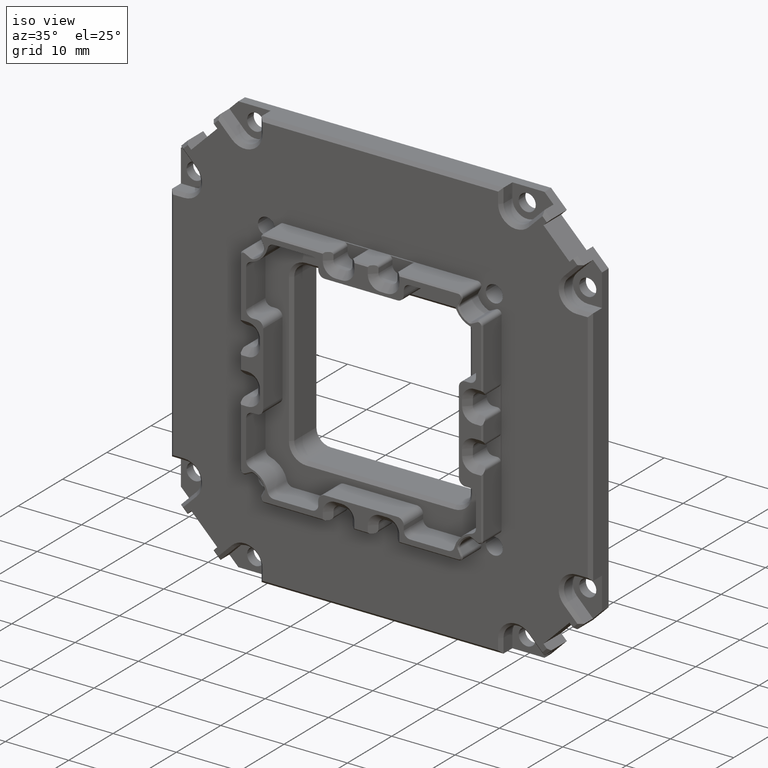
[diagram: clean part render]
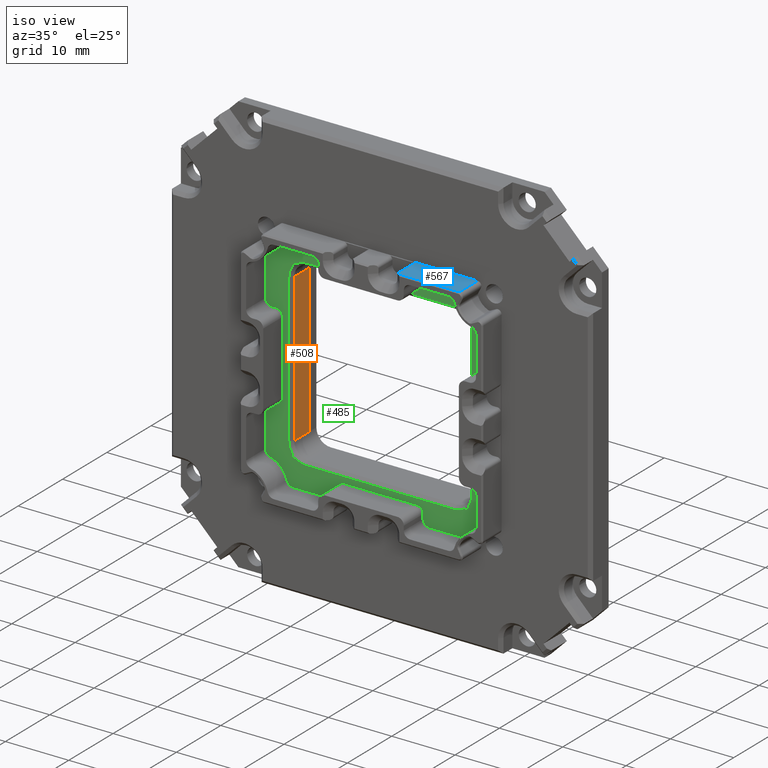
[diagram: same view with three faces highlighted in distinct colors, each labeled with its STEP entity id]
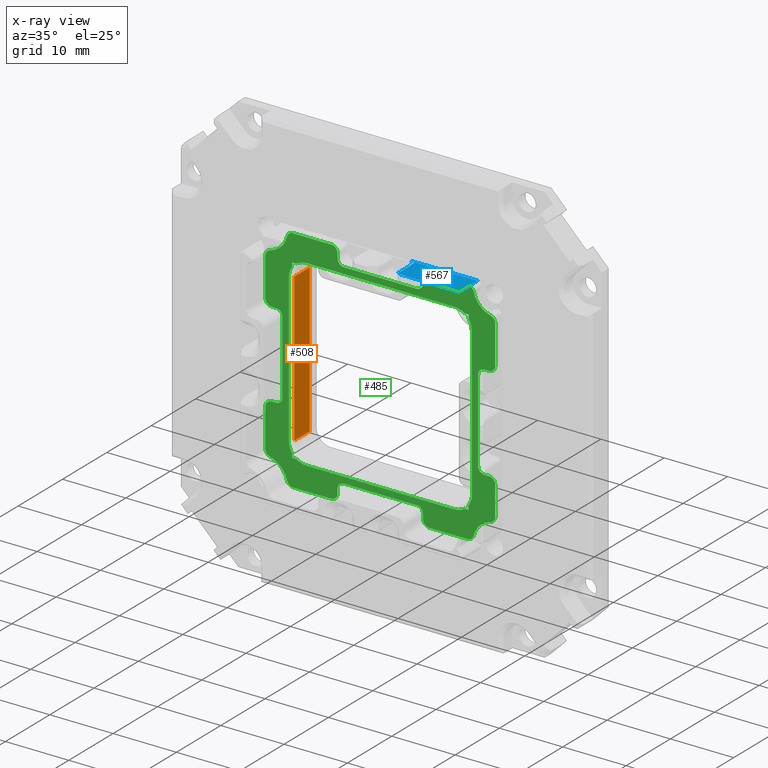
[diagram: x-ray of the same camera — body ghosted, the three highlighted faces saturated]
A machine part, iso view with three faces highlighted in distinct colors.
The next image is the same camera in x-ray (body ghosted, the three faces saturated) — at least one of them is partly hidden behind the body in this view.
Their STEP definitions:

[orange] entity #508 — the highlighted planar face has unit normal (1, 0, 0).
#508=ADVANCED_FACE('',(#961),#4336,.T.);
#961=FACE_OUTER_BOUND('',#1429,.F.);
#1429=EDGE_LOOP('',(#2245,#2246,#2247,#2248));
#2245=ORIENTED_EDGE('',*,*,#6662,.T.);
#2246=ORIENTED_EDGE('',*,*,#6605,.T.);
#2247=ORIENTED_EDGE('',*,*,#6594,.F.);
#2248=ORIENTED_EDGE('',*,*,#6601,.F.);
#4336=PLANE('',#10517);
#6594=EDGE_CURVE('',#9956,#9955,#7780,.T.);
#6601=EDGE_CURVE('',#9949,#9956,#7785,.T.);
#6605=EDGE_CURVE('',#9946,#9955,#7789,.T.);
#6662=EDGE_CURVE('',#9949,#9946,#7822,.T.);
#7780=LINE('',#14354,#8628);
#7785=LINE('',#14361,#8633);
#7789=LINE('',#14365,#8637);
#7822=LINE('',#14422,#8670);
#8628=VECTOR('',#11164,23.4);
#8633=VECTOR('',#11173,3.5);
#8637=VECTOR('',#11177,3.50000000000002);
#8670=VECTOR('',#11258,23.4);
#9946=VERTEX_POINT('',#14006);
#9949=VERTEX_POINT('',#14009);
#9955=VERTEX_POINT('',#14015);
#9956=VERTEX_POINT('',#14016);
#10517=AXIS2_PLACEMENT_3D('',#15684,#12539,#12540);
#11164=DIRECTION('',(0.,0.,-1.));
#11173=DIRECTION('',(0.,-1.,0.));
#11177=DIRECTION('',(0.,-1.,0.));
#11258=DIRECTION('',(0.,0.,-1.));
#12539=DIRECTION('',(1.,0.,0.));
#12540=DIRECTION('',(0.,0.,-1.));
#14006=CARTESIAN_POINT('',(-13.9500019518159,0.,-11.699999947186));
#14009=CARTESIAN_POINT('',(-13.9500029277246,0.,11.700000079221));
#14015=CARTESIAN_POINT('',(-13.9500039036333,-3.50000000000001,-11.699999894372));
#14016=CARTESIAN_POINT('',(-13.9500039036333,-3.5,11.700000105628));
#14354=CARTESIAN_POINT('',(-13.9500039036333,-3.5,11.700000105628));
#14361=CARTESIAN_POINT('',(-13.9500039036333,0.,11.700000105628));
#14365=CARTESIAN_POINT('',(-13.9500039036333,0.,-11.699999894372));
#14422=CARTESIAN_POINT('',(-13.9500039036333,0.,11.700000105628));
#15684=CARTESIAN_POINT('',(-13.9500039036333,-4.,13.950000105628));

[blue] entity #567 — the highlighted planar face has unit normal (0, 0, 1).
#567=ADVANCED_FACE('',(#1020),#4372,.T.);
#1020=FACE_OUTER_BOUND('',#1489,.F.);
#1489=EDGE_LOOP('',(#2654,#2655,#2656,#2657,#2658,#2659,#2660));
#2654=ORIENTED_EDGE('',*,*,#6736,.F.);
#2655=ORIENTED_EDGE('',*,*,#7163,.F.);
#2656=ORIENTED_EDGE('',*,*,#6888,.T.);
#2657=ORIENTED_EDGE('',*,*,#7397,.T.);
#2658=ORIENTED_EDGE('',*,*,#7033,.T.);
#2659=ORIENTED_EDGE('',*,*,#7034,.F.);
#2660=ORIENTED_EDGE('',*,*,#7139,.T.);
#4372=PLANE('',#10576);
#6736=EDGE_CURVE('',#9807,#9824,#7859,.T.);
#6888=EDGE_CURVE('',#9682,#9681,#7946,.T.);
#7033=EDGE_CURVE('',#9510,#9509,#8029,.T.);
#7034=EDGE_CURVE('',#9508,#9509,#8030,.T.);
#7139=EDGE_CURVE('',#9508,#9824,#8135,.T.);
#7163=EDGE_CURVE('',#9682,#9807,#8159,.T.);
#7397=EDGE_CURVE('',#9681,#9510,#8333,.T.);
#7859=LINE('',#14496,#8707);
#7946=LINE('',#14648,#8794);
#8029=LINE('',#14793,#8877);
#8030=LINE('',#14794,#8878);
#8135=LINE('',#14899,#8983);
#8159=LINE('',#14923,#9007);
#8333=LINE('',#15317,#9181);
#8707=VECTOR('',#11369,10.3026741449645);
#8794=VECTOR('',#11586,9.50267414455724);
#8877=VECTOR('',#11793,3.6499999999965);
#8878=VECTOR('',#11794,0.499999999996511);
#8983=VECTOR('',#11899,0.200000000000019);
#9007=VECTOR('',#11923,4.15);
#9181=VECTOR('',#12177,0.42426406871686);
#9508=VERTEX_POINT('',#13568);
#9509=VERTEX_POINT('',#13569);
#9510=VERTEX_POINT('',#13570);
#9681=VERTEX_POINT('',#13741);
#9682=VERTEX_POINT('',#13742);
#9807=VERTEX_POINT('',#13867);
#9824=VERTEX_POINT('',#13884);
#10576=AXIS2_PLACEMENT_3D('',#15743,#12657,#12658);
#11369=DIRECTION('',(-1.,0.,0.));
#11586=DIRECTION('',(-1.,0.,0.));
#11793=DIRECTION('',(0.,1.,0.));
#11794=DIRECTION('',(1.,0.,0.));
#11899=DIRECTION('',(0.,1.,0.));
#11923=DIRECTION('',(0.,1.,0.));
#12177=DIRECTION('',(-0.707106781186545,0.70710678118655,0.));
#12657=DIRECTION('',(0.,0.,1.));
#12658=DIRECTION('',(-1.,0.,0.));
#13568=CARTESIAN_POINT('',(5.04999941206933,-4.20000012339984,19.1499968173791));
#13569=CARTESIAN_POINT('',(5.54999959051208,-4.20000012339993,19.14999308692));
#13570=CARTESIAN_POINT('',(5.5499994887443,-7.85000002161993,19.14999308692));
#13741=CARTESIAN_POINT('',(5.84999959051287,-8.15000012339872,19.1499930869209));
#13742=CARTESIAN_POINT('',(15.352673735069,-8.15000012339982,19.149993086922));
#13867=CARTESIAN_POINT('',(15.352673735069,-4.00000004113327,19.149993086922));
#13884=CARTESIAN_POINT('',(5.04999935245057,-4.00000004113327,19.1499955738918));
#14496=CARTESIAN_POINT('',(15.352673735069,-3.99999999999999,19.149993086922));
#14648=CARTESIAN_POINT('',(15.352673735069,-8.15000012339982,19.149993086922));
#14793=CARTESIAN_POINT('',(5.54999959051159,-7.85000012339633,19.149993086922));
#14794=CARTESIAN_POINT('',(5.04999959051508,-4.20000012339983,19.149993086922));
#14899=CARTESIAN_POINT('',(5.04999959051508,-4.20000012339984,19.149993086922));
#14923=CARTESIAN_POINT('',(15.352673735069,-8.15000012339982,19.149993086922));
#15317=CARTESIAN_POINT('',(5.84999959051508,-8.15000012339982,19.149993086922));
#15743=CARTESIAN_POINT('',(15.4557004765187,-3.89697338195017,19.1499930869221));

[green] entity #485 — the highlighted planar face has unit normal (0, -1, 0).
#448=FACE_BOUND('',#1391,.F.);
#485=ADVANCED_FACE('',(#448,#938),#4325,.T.);
#938=FACE_OUTER_BOUND('',#1392,.F.);
#1391=EDGE_LOOP('',(#1897,#1898,#1899,#1900,#1901,#1902,#1903,#1904,#1905,
#1906,#1907,#1908,#1909,#1910,#1911,#1912,#1913,#1914,#1915,#1916));
#1392=EDGE_LOOP('',(#1917,#1918,#1919,#1920,#1921,#1922,#1923,#1924,#1925,
#1926,#1927,#1928,#1929,#1930,#1931,#1932,#1933,#1934,#1935,#1936,#1937,
#1938,#1939,#1940,#1941,#1942,#1943,#1944,#1945,#1946,#1947,#1948,#1949,
#1950,#1951,#1952,#1953,#1954,#1955,#1956,#1957,#1958,#1959,#1960,#1961,
#1962,#1963,#1964));
#1897=ORIENTED_EDGE('',*,*,#6607,.T.);
#1898=ORIENTED_EDGE('',*,*,#6608,.T.);
#1899=ORIENTED_EDGE('',*,*,#6595,.T.);
#1900=ORIENTED_EDGE('',*,*,#6581,.T.);
#1901=ORIENTED_EDGE('',*,*,#6584,.T.);
#1902=ORIENTED_EDGE('',*,*,#6611,.T.);
#1903=ORIENTED_EDGE('',*,*,#6612,.T.);
#1904=ORIENTED_EDGE('',*,*,#6583,.T.);
#1905=ORIENTED_EDGE('',*,*,#6585,.T.);
#1906=ORIENTED_EDGE('',*,*,#6588,.T.);
#1907=ORIENTED_EDGE('',*,*,#6599,.T.);
#1908=ORIENTED_EDGE('',*,*,#6600,.T.);
#1909=ORIENTED_EDGE('',*,*,#6587,.T.);
#1910=ORIENTED_EDGE('',*,*,#6589,.T.);
#1911=ORIENTED_EDGE('',*,*,#6592,.T.);
#1912=ORIENTED_EDGE('',*,*,#6603,.T.);
#1913=ORIENTED_EDGE('',*,*,#6604,.T.);
#1914=ORIENTED_EDGE('',*,*,#6591,.T.);
#1915=ORIENTED_EDGE('',*,*,#6593,.T.);
#1916=ORIENTED_EDGE('',*,*,#6596,.T.);
#1917=ORIENTED_EDGE('',*,*,#6682,.F.);
#1918=ORIENTED_EDGE('',*,*,#6683,.F.);
#1919=ORIENTED_EDGE('',*,*,#6684,.F.);
#1920=ORIENTED_EDGE('',*,*,#6685,.F.);
#1921=ORIENTED_EDGE('',*,*,#6686,.T.);
#1922=ORIENTED_EDGE('',*,*,#6687,.F.);
#1923=ORIENTED_EDGE('',*,*,#6688,.F.);
#1924=ORIENTED_EDGE('',*,*,#6689,.F.);
#1925=ORIENTED_EDGE('',*,*,#6690,.F.);
#1926=ORIENTED_EDGE('',*,*,#6672,.T.);
#1927=ORIENTED_EDGE('',*,*,#6710,.F.);
#1928=ORIENTED_EDGE('',*,*,#6671,.T.);
#1929=ORIENTED_EDGE('',*,*,#6673,.F.);
#1930=ORIENTED_EDGE('',*,*,#6674,.F.);
#1931=ORIENTED_EDGE('',*,*,#6675,.F.);
#1932=ORIENTED_EDGE('',*,*,#6676,.F.);
#1933=ORIENTED_EDGE('',*,*,#6677,.T.);
#1934=ORIENTED_EDGE('',*,*,#6678,.F.);
#1935=ORIENTED_EDGE('',*,*,#6679,.F.);
#1936=ORIENTED_EDGE('',*,*,#6680,.F.);
#1937=ORIENTED_EDGE('',*,*,#6681,.F.);
#1938=ORIENTED_EDGE('',*,*,#6670,.T.);
#1939=ORIENTED_EDGE('',*,*,#6709,.F.);
#1940=ORIENTED_EDGE('',*,*,#6669,.T.);
#1941=ORIENTED_EDGE('',*,*,#6708,.F.);
#1942=ORIENTED_EDGE('',*,*,#6700,.F.);
#1943=ORIENTED_EDGE('',*,*,#6701,.F.);
#1944=ORIENTED_EDGE('',*,*,#6702,.F.);
#1945=ORIENTED_EDGE('',*,*,#6703,.T.);
#1946=ORIENTED_EDGE('',*,*,#6704,.F.);
#1947=ORIENTED_EDGE('',*,*,#6705,.F.);
#1948=ORIENTED_EDGE('',*,*,#6706,.F.);
#1949=ORIENTED_EDGE('',*,*,#6707,.F.);
#1950=ORIENTED_EDGE('',*,*,#6668,.T.);
#1951=ORIENTED_EDGE('',*,*,#6712,.F.);
#1952=ORIENTED_EDGE('',*,*,#6667,.T.);
#1953=ORIENTED_EDGE('',*,*,#6691,.F.);
#1954=ORIENTED_EDGE('',*,*,#6692,.F.);
#1955=ORIENTED_EDGE('',*,*,#6693,.F.);
#1956=ORIENTED_EDGE('',*,*,#6694,.F.);
#1957=ORIENTED_EDGE('',*,*,#6695,.T.);
#1958=ORIENTED_EDGE('',*,*,#6696,.F.);
#1959=ORIENTED_EDGE('',*,*,#6697,.F.);
#1960=ORIENTED_EDGE('',*,*,#6698,.F.);
#1961=ORIENTED_EDGE('',*,*,#6699,.F.);
#1962=ORIENTED_EDGE('',*,*,#6666,.T.);
#1963=ORIENTED_EDGE('',*,*,#6711,.F.);
#1964=ORIENTED_EDGE('',*,*,#6665,.T.);
#4325=PLANE('',#10494);
#6105=CIRCLE('',#10178,2.74999999999999);
#6106=CIRCLE('',#10179,2.74999999999999);
#6107=CIRCLE('',#10180,2.75);
#6108=CIRCLE('',#10181,2.75);
#6109=CIRCLE('',#10182,2.75);
#6110=CIRCLE('',#10183,2.75);
#6111=CIRCLE('',#10184,2.75);
#6112=CIRCLE('',#10185,2.75);
#6137=CIRCLE('',#10210,1.);
#6138=CIRCLE('',#10211,1.);
#6139=CIRCLE('',#10212,1.);
#6140=CIRCLE('',#10213,1.);
#6141=CIRCLE('',#10214,1.);
#6142=CIRCLE('',#10215,1.);
#6143=CIRCLE('',#10216,1.);
#6144=CIRCLE('',#10217,1.);
#6145=CIRCLE('',#10218,1.);
#6146=CIRCLE('',#10219,1.);
#6147=CIRCLE('',#10220,3.59999999999998);
#6148=CIRCLE('',#10221,0.999999999999976);
#6149=CIRCLE('',#10222,1.);
#6150=CIRCLE('',#10223,1.);
#6151=CIRCLE('',#10224,1.);
#6152=CIRCLE('',#10225,3.59999999999996);
#6153=CIRCLE('',#10226,0.999999999999979);
#6154=CIRCLE('',#10227,1.);
#6155=CIRCLE('',#10228,1.);
#6156=CIRCLE('',#10229,1.);
#6157=CIRCLE('',#10230,3.60000000000001);
#6158=CIRCLE('',#10231,0.999999999999976);
#6159=CIRCLE('',#10232,1.);
#6160=CIRCLE('',#10233,1.);
#6161=CIRCLE('',#10234,1.);
#6162=CIRCLE('',#10235,3.59999999999999);
#6163=CIRCLE('',#10236,0.999999999999979);
#6164=CIRCLE('',#10237,1.);
#6581=EDGE_CURVE('',#9976,#9975,#7773,.T.);
#6583=EDGE_CURVE('',#9972,#9971,#6105,.T.);
#6584=EDGE_CURVE('',#9975,#9970,#6106,.T.);
#6585=EDGE_CURVE('',#9971,#9969,#7775,.T.);
#6587=EDGE_CURVE('',#9966,#9965,#6107,.T.);
#6588=EDGE_CURVE('',#9969,#9964,#6108,.T.);
#6589=EDGE_CURVE('',#9965,#9963,#7777,.T.);
#6591=EDGE_CURVE('',#9960,#9959,#6109,.T.);
#6592=EDGE_CURVE('',#9963,#9958,#6110,.T.);
#6593=EDGE_CURVE('',#9959,#9957,#7779,.T.);
#6595=EDGE_CURVE('',#9954,#9976,#6111,.T.);
#6596=EDGE_CURVE('',#9957,#9953,#6112,.T.);
#6599=EDGE_CURVE('',#9964,#9950,#7783,.T.);
#6600=EDGE_CURVE('',#9950,#9966,#7784,.T.);
#6603=EDGE_CURVE('',#9958,#9947,#7787,.T.);
#6604=EDGE_CURVE('',#9947,#9960,#7788,.T.);
#6607=EDGE_CURVE('',#9953,#9944,#7791,.T.);
#6608=EDGE_CURVE('',#9944,#9954,#7792,.T.);
#6611=EDGE_CURVE('',#9970,#9941,#7795,.T.);
#6612=EDGE_CURVE('',#9941,#9972,#7796,.T.);
#6665=EDGE_CURVE('',#9884,#9883,#6137,.T.);
#6666=EDGE_CURVE('',#9882,#9881,#6138,.T.);
#6667=EDGE_CURVE('',#9880,#9879,#6139,.T.);
#6668=EDGE_CURVE('',#9878,#9877,#6140,.T.);
#6669=EDGE_CURVE('',#9876,#9875,#6141,.T.);
#6670=EDGE_CURVE('',#9874,#9873,#6142,.T.);
#6671=EDGE_CURVE('',#9872,#9871,#6143,.T.);
#6672=EDGE_CURVE('',#9870,#9869,#6144,.T.);
#6673=EDGE_CURVE('',#9868,#9871,#7825,.T.);
#6674=EDGE_CURVE('',#9867,#9868,#6145,.T.);
#6675=EDGE_CURVE('',#9866,#9867,#7826,.T.);
#6676=EDGE_CURVE('',#9865,#9866,#6146,.T.);
#6677=EDGE_CURVE('',#9865,#9864,#6147,.T.);
#6678=EDGE_CURVE('',#9863,#9864,#6148,.T.);
#6679=EDGE_CURVE('',#9862,#9863,#7827,.T.);
#6680=EDGE_CURVE('',#9861,#9862,#6149,.T.);
#6681=EDGE_CURVE('',#9874,#9861,#7828,.T.);
#6682=EDGE_CURVE('',#9860,#9883,#7829,.T.);
#6683=EDGE_CURVE('',#9859,#9860,#6150,.T.);
#6684=EDGE_CURVE('',#9858,#9859,#7830,.T.);
#6685=EDGE_CURVE('',#9857,#9858,#6151,.T.);
#6686=EDGE_CURVE('',#9857,#9856,#6152,.T.);
#6687=EDGE_CURVE('',#9855,#9856,#6153,.T.);
#6688=EDGE_CURVE('',#9854,#9855,#7831,.T.);
#6689=EDGE_CURVE('',#9853,#9854,#6154,.T.);
#6690=EDGE_CURVE('',#9870,#9853,#7832,.T.);
#6691=EDGE_CURVE('',#9852,#9879,#7833,.T.);
#6692=EDGE_CURVE('',#9851,#9852,#6155,.T.);
#6693=EDGE_CURVE('',#9850,#9851,#7834,.T.);
#6694=EDGE_CURVE('',#9849,#9850,#6156,.T.);
#6695=EDGE_CURVE('',#9849,#9848,#6157,.T.);
#6696=EDGE_CURVE('',#9847,#9848,#6158,.T.);
#6697=EDGE_CURVE('',#9846,#9847,#7835,.T.);
#6698=EDGE_CURVE('',#9845,#9846,#6159,.T.);
#6699=EDGE_CURVE('',#9882,#9845,#7836,.T.);
#6700=EDGE_CURVE('',#9844,#9843,#6160,.T.);
#6701=EDGE_CURVE('',#9842,#9844,#7837,.T.);
#6702=EDGE_CURVE('',#9841,#9842,#6161,.T.);
#6703=EDGE_CURVE('',#9841,#9840,#6162,.T.);
#6704=EDGE_CURVE('',#9839,#9840,#6163,.T.);
#6705=EDGE_CURVE('',#9838,#9839,#7838,.T.);
#6706=EDGE_CURVE('',#9837,#9838,#6164,.T.);
#6707=EDGE_CURVE('',#9878,#9837,#7839,.T.);
#6708=EDGE_CURVE('',#9843,#9875,#7840,.T.);
#6709=EDGE_CURVE('',#9876,#9873,#7841,.T.);
#6710=EDGE_CURVE('',#9872,#9869,#7842,.T.);
#6711=EDGE_CURVE('',#9884,#9881,#7843,.T.);
#6712=EDGE_CURVE('',#9880,#9877,#7844,.T.);
#7773=LINE('',#14341,#8621);
#7775=LINE('',#14345,#8623);
#7777=LINE('',#14349,#8625);
#7779=LINE('',#14353,#8627);
#7783=LINE('',#14359,#8631);
#7784=LINE('',#14360,#8632);
#7787=LINE('',#14363,#8635);
#7788=LINE('',#14364,#8636);
#7791=LINE('',#14367,#8639);
#7792=LINE('',#14368,#8640);
#7795=LINE('',#14371,#8643);
#7796=LINE('',#14372,#8644);
#7825=LINE('',#14433,#8673);
#7826=LINE('',#14435,#8674);
#7827=LINE('',#14439,#8675);
#7828=LINE('',#14441,#8676);
#7829=LINE('',#14442,#8677);
#7830=LINE('',#14444,#8678);
#7831=LINE('',#14448,#8679);
#7832=LINE('',#14450,#8680);
#7833=LINE('',#14451,#8681);
#7834=LINE('',#14453,#8682);
#7835=LINE('',#14457,#8683);
#7836=LINE('',#14459,#8684);
#7837=LINE('',#14461,#8685);
#7838=LINE('',#14465,#8686);
#7839=LINE('',#14467,#8687);
#7840=LINE('',#14468,#8688);
#7841=LINE('',#14469,#8689);
#7842=LINE('',#14470,#8690);
#7843=LINE('',#14471,#8691);
#7844=LINE('',#14472,#8692);
#8621=VECTOR('',#11145,23.3999999999974);
#8623=VECTOR('',#11151,23.4);
#8625=VECTOR('',#11157,23.3999999999974);
#8627=VECTOR('',#11163,23.4);
#8631=VECTOR('',#11171,0.668861169915807);
#8632=VECTOR('',#11172,0.668861169915814);
#8635=VECTOR('',#11175,0.6688611699158);
#8636=VECTOR('',#11176,0.668861169915786);
#8639=VECTOR('',#11179,0.668861169915829);
#8640=VECTOR('',#11180,0.668861169915814);
#8643=VECTOR('',#11183,0.668861169915836);
#8644=VECTOR('',#11184,0.668861169915829);
#8673=VECTOR('',#11277,0.699996302311504);
#8674=VECTOR('',#11280,6.03345796620374);
#8675=VECTOR('',#11287,6.03345044536141);
#8676=VECTOR('',#11290,0.700000140915748);
#8677=VECTOR('',#11291,0.700000140915563);
#8678=VECTOR('',#11294,6.03345044534299);
#8679=VECTOR('',#11301,6.03345796620374);
#8680=VECTOR('',#11304,0.699996302263187);
#8681=VECTOR('',#11305,0.699996302311618);
#8682=VECTOR('',#11308,6.03345796620373);
#8683=VECTOR('',#11315,6.03345044536141);
#8684=VECTOR('',#11318,0.700000140915549);
#8685=VECTOR('',#11321,4.53345783831355);
#8686=VECTOR('',#11328,6.03345796620374);
#8687=VECTOR('',#11331,0.699996302263258);
#8688=VECTOR('',#11332,0.700000140903093);
#8689=VECTOR('',#11333,12.9999997471424);
#8690=VECTOR('',#11334,11.4999997757606);
#8691=VECTOR('',#11335,11.5000071401057);
#8692=VECTOR('',#11336,11.4999997757597);
#9837=VERTEX_POINT('',#13897);
#9838=VERTEX_POINT('',#13898);
#9839=VERTEX_POINT('',#13899);
#9840=VERTEX_POINT('',#13900);
#9841=VERTEX_POINT('',#13901);
#9842=VERTEX_POINT('',#13902);
#9843=VERTEX_POINT('',#13903);
#9844=VERTEX_POINT('',#13904);
#9845=VERTEX_POINT('',#13905);
#9846=VERTEX_POINT('',#13906);
#9847=VERTEX_POINT('',#13907);
#9848=VERTEX_POINT('',#13908);
#9849=VERTEX_POINT('',#13909);
#9850=VERTEX_POINT('',#13910);
#9851=VERTEX_POINT('',#13911);
#9852=VERTEX_POINT('',#13912);
#9853=VERTEX_POINT('',#13913);
#9854=VERTEX_POINT('',#13914);
#9855=VERTEX_POINT('',#13915);
#9856=VERTEX_POINT('',#13916);
#9857=VERTEX_POINT('',#13917);
#9858=VERTEX_POINT('',#13918);
#9859=VERTEX_POINT('',#13919);
#9860=VERTEX_POINT('',#13920);
#9861=VERTEX_POINT('',#13921);
#9862=VERTEX_POINT('',#13922);
#9863=VERTEX_POINT('',#13923);
#9864=VERTEX_POINT('',#13924);
#9865=VERTEX_POINT('',#13925);
#9866=VERTEX_POINT('',#13926);
#9867=VERTEX_POINT('',#13927);
#9868=VERTEX_POINT('',#13928);
#9869=VERTEX_POINT('',#13929);
#9870=VERTEX_POINT('',#13930);
#9871=VERTEX_POINT('',#13931);
#9872=VERTEX_POINT('',#13932);
#9873=VERTEX_POINT('',#13933);
#9874=VERTEX_POINT('',#13934);
#9875=VERTEX_POINT('',#13935);
#9876=VERTEX_POINT('',#13936);
#9877=VERTEX_POINT('',#13937);
#9878=VERTEX_POINT('',#13938);
#9879=VERTEX_POINT('',#13939);
#9880=VERTEX_POINT('',#13940);
#9881=VERTEX_POINT('',#13941);
#9882=VERTEX_POINT('',#13942);
#9883=VERTEX_POINT('',#13943);
#9884=VERTEX_POINT('',#13944);
#9941=VERTEX_POINT('',#14001);
#9944=VERTEX_POINT('',#14004);
#9947=VERTEX_POINT('',#14007);
#9950=VERTEX_POINT('',#14010);
#9953=VERTEX_POINT('',#14013);
#9954=VERTEX_POINT('',#14014);
#9957=VERTEX_POINT('',#14017);
#9958=VERTEX_POINT('',#14018);
#9959=VERTEX_POINT('',#14019);
#9960=VERTEX_POINT('',#14020);
#9963=VERTEX_POINT('',#14023);
#9964=VERTEX_POINT('',#14024);
#9965=VERTEX_POINT('',#14025);
#9966=VERTEX_POINT('',#14026);
#9969=VERTEX_POINT('',#14029);
#9970=VERTEX_POINT('',#14030);
#9971=VERTEX_POINT('',#14031);
#9972=VERTEX_POINT('',#14032);
#9975=VERTEX_POINT('',#14035);
#9976=VERTEX_POINT('',#14036);
#10178=AXIS2_PLACEMENT_3D('',#14343,#11147,#11148);
#10179=AXIS2_PLACEMENT_3D('',#14344,#11149,#11150);
#10180=AXIS2_PLACEMENT_3D('',#14347,#11153,#11154);
#10181=AXIS2_PLACEMENT_3D('',#14348,#11155,#11156);
#10182=AXIS2_PLACEMENT_3D('',#14351,#11159,#11160);
#10183=AXIS2_PLACEMENT_3D('',#14352,#11161,#11162);
#10184=AXIS2_PLACEMENT_3D('',#14355,#11165,#11166);
#10185=AXIS2_PLACEMENT_3D('',#14356,#11167,#11168);
#10210=AXIS2_PLACEMENT_3D('',#14425,#11261,#11262);
#10211=AXIS2_PLACEMENT_3D('',#14426,#11263,#11264);
#10212=AXIS2_PLACEMENT_3D('',#14427,#11265,#11266);
#10213=AXIS2_PLACEMENT_3D('',#14428,#11267,#11268);
#10214=AXIS2_PLACEMENT_3D('',#14429,#11269,#11270);
#10215=AXIS2_PLACEMENT_3D('',#14430,#11271,#11272);
#10216=AXIS2_PLACEMENT_3D('',#14431,#11273,#11274);
#10217=AXIS2_PLACEMENT_3D('',#14432,#11275,#11276);
#10218=AXIS2_PLACEMENT_3D('',#14434,#11278,#11279);
#10219=AXIS2_PLACEMENT_3D('',#14436,#11281,#11282);
#10220=AXIS2_PLACEMENT_3D('',#14437,#11283,#11284);
#10221=AXIS2_PLACEMENT_3D('',#14438,#11285,#11286);
#10222=AXIS2_PLACEMENT_3D('',#14440,#11288,#11289);
#10223=AXIS2_PLACEMENT_3D('',#14443,#11292,#11293);
#10224=AXIS2_PLACEMENT_3D('',#14445,#11295,#11296);
#10225=AXIS2_PLACEMENT_3D('',#14446,#11297,#11298);
#10226=AXIS2_PLACEMENT_3D('',#14447,#11299,#11300);
#10227=AXIS2_PLACEMENT_3D('',#14449,#11302,#11303);
#10228=AXIS2_PLACEMENT_3D('',#14452,#11306,#11307);
#10229=AXIS2_PLACEMENT_3D('',#14454,#11309,#11310);
#10230=AXIS2_PLACEMENT_3D('',#14455,#11311,#11312);
#10231=AXIS2_PLACEMENT_3D('',#14456,#11313,#11314);
#10232=AXIS2_PLACEMENT_3D('',#14458,#11316,#11317);
#10233=AXIS2_PLACEMENT_3D('',#14460,#11319,#11320);
#10234=AXIS2_PLACEMENT_3D('',#14462,#11322,#11323);
#10235=AXIS2_PLACEMENT_3D('',#14463,#11324,#11325);
#10236=AXIS2_PLACEMENT_3D('',#14464,#11326,#11327);
#10237=AXIS2_PLACEMENT_3D('',#14466,#11329,#11330);
#10494=AXIS2_PLACEMENT_3D('',#15661,#12493,#12494);
#11145=DIRECTION('',(1.,0.,0.));
#11147=DIRECTION('',(0.,-1.,0.));
#11148=DIRECTION('',(0.818409513088995,0.,-0.574635422581512));
#11149=DIRECTION('',(0.,-1.,0.));
#11150=DIRECTION('',(0.,0.,-1.));
#11151=DIRECTION('',(0.,0.,1.));
#11153=DIRECTION('',(0.,-1.,0.));
#11154=DIRECTION('',(0.574635422581523,0.,0.818409513088988));
#11155=DIRECTION('',(0.,-1.,0.));
#11156=DIRECTION('',(1.,0.,0.));
#11157=DIRECTION('',(-1.,0.,0.));
#11159=DIRECTION('',(0.,-1.,0.));
#11160=DIRECTION('',(-0.818409513088995,0.,0.574635422581513));
#11161=DIRECTION('',(0.,-1.,0.));
#11162=DIRECTION('',(0.,0.,1.));
#11163=DIRECTION('',(0.,0.,-1.));
#11165=DIRECTION('',(0.,-1.,0.));
#11166=DIRECTION('',(-0.574635422581518,0.,-0.818409513088992));
#11167=DIRECTION('',(0.,-1.,0.));
#11168=DIRECTION('',(-1.,0.,0.));
#11171=DIRECTION('',(0.,0.,1.));
#11172=DIRECTION('',(-1.,0.,0.));
#11175=DIRECTION('',(-1.,0.,0.));
#11176=DIRECTION('',(0.,0.,-1.));
#11179=DIRECTION('',(0.,0.,-1.));
#11180=DIRECTION('',(1.,0.,0.));
#11183=DIRECTION('',(1.,0.,0.));
#11184=DIRECTION('',(0.,0.,1.));
#11261=DIRECTION('',(0.,-1.,0.));
#11262=DIRECTION('',(1.,0.,0.));
#11263=DIRECTION('',(0.,-1.,0.));
#11264=DIRECTION('',(0.,0.,-1.));
#11265=DIRECTION('',(0.,-1.,0.));
#11266=DIRECTION('',(0.,0.,1.));
#11267=DIRECTION('',(0.,-1.,0.));
#11268=DIRECTION('',(1.,0.,0.));
#11269=DIRECTION('',(0.,-1.,0.));
#11270=DIRECTION('',(-1.,0.,0.));
#11271=DIRECTION('',(0.,-1.,0.));
#11272=DIRECTION('',(0.,0.,1.));
#11273=DIRECTION('',(0.,-1.,0.));
#11274=DIRECTION('',(0.,0.,-1.));
#11275=DIRECTION('',(0.,-1.,0.));
#11276=DIRECTION('',(-1.,0.,0.));
#11277=DIRECTION('',(0.,0.,-1.));
#11278=DIRECTION('',(0.,-1.,0.));
#11279=DIRECTION('',(0.,0.,1.));
#11280=DIRECTION('',(-1.,0.,0.));
#11281=DIRECTION('',(0.,-1.,0.));
#11282=DIRECTION('',(0.970987453659482,0.,0.239130434775408));
#11283=DIRECTION('',(0.,-1.,0.));
#11284=DIRECTION('',(-0.970987453659693,0.,-0.239130434774552));
#11285=DIRECTION('',(0.,-1.,0.));
#11286=DIRECTION('',(1.,0.,0.));
#11287=DIRECTION('',(0.,0.,1.));
#11288=DIRECTION('',(0.,-1.,0.));
#11289=DIRECTION('',(0.,0.,-1.));
#11290=DIRECTION('',(1.,0.,0.));
#11291=DIRECTION('',(1.,0.,0.));
#11292=DIRECTION('',(0.,-1.,0.));
#11293=DIRECTION('',(-1.,0.,0.));
#11294=DIRECTION('',(0.,0.,-1.));
#11295=DIRECTION('',(0.,-1.,0.));
#11296=DIRECTION('',(-0.239130434803137,0.,0.970987453652653));
#11297=DIRECTION('',(0.,-1.,0.));
#11298=DIRECTION('',(0.239130434803067,0.,-0.97098745365267));
#11299=DIRECTION('',(0.,-1.,0.));
#11300=DIRECTION('',(0.,0.,1.));
#11301=DIRECTION('',(-1.,0.,0.));
#11302=DIRECTION('',(0.,-1.,0.));
#11303=DIRECTION('',(1.,0.,0.));
#11304=DIRECTION('',(0.,0.,1.));
#11305=DIRECTION('',(0.,0.,1.));
#11306=DIRECTION('',(0.,-1.,0.));
#11307=DIRECTION('',(0.,0.,-1.));
#11308=DIRECTION('',(1.,0.,0.));
#11309=DIRECTION('',(0.,-1.,0.));
#11310=DIRECTION('',(-0.970987453659482,0.,-0.239130434775408));
#11311=DIRECTION('',(0.,-1.,0.));
#11312=DIRECTION('',(0.970987453659692,0.,0.239130434774554));
#11313=DIRECTION('',(0.,-1.,0.));
#11314=DIRECTION('',(-1.,0.,0.));
#11315=DIRECTION('',(0.,0.,-1.));
#11316=DIRECTION('',(0.,-1.,0.));
#11317=DIRECTION('',(0.,0.,1.));
#11318=DIRECTION('',(-1.,0.,0.));
#11319=DIRECTION('',(0.,-1.,0.));
#11320=DIRECTION('',(1.,0.,0.));
#11321=DIRECTION('',(0.,0.,1.));
#11322=DIRECTION('',(0.,-1.,0.));
#11323=DIRECTION('',(0.23913043480308,0.,-0.970987453652667));
#11324=DIRECTION('',(0.,-1.,0.));
#11325=DIRECTION('',(-0.239130434803038,0.,0.970987453652677));
#11326=DIRECTION('',(0.,-1.,0.));
#11327=DIRECTION('',(0.,0.,-1.));
#11328=DIRECTION('',(1.,0.,0.));
#11329=DIRECTION('',(0.,-1.,0.));
#11330=DIRECTION('',(-1.,0.,0.));
#11331=DIRECTION('',(0.,0.,-1.));
#11332=DIRECTION('',(-1.,0.,0.));
#11333=DIRECTION('',(0.,0.,1.));
#11334=DIRECTION('',(-1.,0.,0.));
#11335=DIRECTION('',(0.,0.,-1.));
#11336=DIRECTION('',(1.,0.,0.));
#12493=DIRECTION('',(0.,-1.,0.));
#12494=DIRECTION('',(-1.,0.,0.));
#13897=CARTESIAN_POINT('',(6.74999957594842,-4.00000004113328,-17.1499958277125));
#13898=CARTESIAN_POINT('',(7.74999957594842,-4.00000004113328,-18.1499958276963));
#13899=CARTESIAN_POINT('',(13.7834575421522,-4.00000004113328,-18.1499958277244));
#13900=CARTESIAN_POINT('',(14.7544449958088,-4.00000004113328,-17.3891262625007));
#13901=CARTESIAN_POINT('',(17.3891302636923,-4.00000004113328,-14.7544409945412));
#13902=CARTESIAN_POINT('',(18.1499998288892,-4.00000004113328,-13.7834535408885));
#13903=CARTESIAN_POINT('',(17.149999828931,-4.00000004113328,-8.24999570256259));
#13904=CARTESIAN_POINT('',(18.149999828937,-4.00000004113328,-9.24999570257299));
#13905=CARTESIAN_POINT('',(-17.1500004528785,-4.00000004113328,-6.75000309553139));
#13906=CARTESIAN_POINT('',(-18.1500004528807,-4.00000004113328,-7.75000309554497));
#13907=CARTESIAN_POINT('',(-18.1500004528159,-4.00000004113328,-13.7834535409003));
#13908=CARTESIAN_POINT('',(-17.389130887619,-4.00000004113328,-14.7544409945407));
#13909=CARTESIAN_POINT('',(-14.7544456197353,-4.00000004113328,-17.3891262625011));
#13910=CARTESIAN_POINT('',(-13.7834581660789,-4.00000004113328,-18.149995827724));
#13911=CARTESIAN_POINT('',(-7.75000019987513,-4.00000004113328,-18.1499958276961));
#13912=CARTESIAN_POINT('',(-6.75000019987512,-4.00000004113328,-17.1499958277447));
#13913=CARTESIAN_POINT('',(-6.75000019987509,-4.00000004113327,17.1499967767551));
#13914=CARTESIAN_POINT('',(-7.75000019987509,-4.00000004113327,18.1499967767389));
#13915=CARTESIAN_POINT('',(-13.7834581660788,-4.00000004113327,18.1499967767668));
#13916=CARTESIAN_POINT('',(-14.7544456197355,-4.00000004113327,17.3891272115431));
#13917=CARTESIAN_POINT('',(-17.3891308876189,-4.00000004113327,14.7544419435835));
#13918=CARTESIAN_POINT('',(-18.1500004528159,-4.00000004113327,13.7834544899307));
#13919=CARTESIAN_POINT('',(-18.1500004528809,-4.00000004113327,7.75000404458775));
#13920=CARTESIAN_POINT('',(-17.1500004528785,-4.00000004113327,6.750004044574));
#13921=CARTESIAN_POINT('',(17.1499998289525,-4.00000004113327,6.75000404457373));
#13922=CARTESIAN_POINT('',(18.1499998289547,-4.00000004113327,7.75000404458726));
#13923=CARTESIAN_POINT('',(18.1499998288901,-4.00000004113327,13.7834544899426));
#13924=CARTESIAN_POINT('',(17.3891302636932,-4.00000004113327,14.754441943583));
#13925=CARTESIAN_POINT('',(14.7544449958095,-4.00000004113327,17.3891272115434));
#13926=CARTESIAN_POINT('',(13.7834575421531,-4.00000004113327,18.1499967767664));
#13927=CARTESIAN_POINT('',(7.74999957594938,-4.00000004113327,18.1499967767387));
#13928=CARTESIAN_POINT('',(6.74999957594936,-4.00000004113327,17.1499967767873));
#13929=CARTESIAN_POINT('',(-5.75000019984319,-4.00000004113326,15.4500004745213));
#13930=CARTESIAN_POINT('',(-6.75000019984318,-4.00000004113326,16.4500004744758));
#13931=CARTESIAN_POINT('',(6.74999957591745,-4.00000004113326,16.4500004744757));
#13932=CARTESIAN_POINT('',(5.74999957591744,-4.00000004113326,15.4500004745213));
#13933=CARTESIAN_POINT('',(15.4499996880369,-4.00000004113326,5.75000404457381));
#13934=CARTESIAN_POINT('',(16.4499996880368,-4.00000004113326,6.75000404457378));
#13935=CARTESIAN_POINT('',(16.4499996880279,-4.00000004113327,-8.24999570255837));
#13936=CARTESIAN_POINT('',(15.4499996880369,-4.00000004113327,-7.24999570256859));
#13937=CARTESIAN_POINT('',(5.74999957591651,-4.00000004113327,-15.4499995254787));
#13938=CARTESIAN_POINT('',(6.74999957591651,-4.00000004113327,-16.4499995254331));
#13939=CARTESIAN_POINT('',(-6.7500001998432,-4.00000004113328,-16.4499995254331));
#13940=CARTESIAN_POINT('',(-5.7500001998432,-4.00000004113328,-15.4499995254787));
#13941=CARTESIAN_POINT('',(-15.4500003119631,-4.00000004113328,-5.75000309553146));
#13942=CARTESIAN_POINT('',(-16.4500003119629,-4.00000004113328,-6.7500030955315));
#13943=CARTESIAN_POINT('',(-16.4500003119629,-4.00000004113327,6.75000404457438));
#13944=CARTESIAN_POINT('',(-15.4500003119631,-4.00000004113327,5.75000404457424));
#14001=CARTESIAN_POINT('',(13.9499960963641,-4.,-13.949999894372));
#14004=CARTESIAN_POINT('',(-13.9500039036333,-4.,-13.949999894372));
#14007=CARTESIAN_POINT('',(-13.9500039036333,-3.99999999999999,13.950000105628));
#14010=CARTESIAN_POINT('',(13.9499960963641,-3.99999999999999,13.950000105628));
#14013=CARTESIAN_POINT('',(-13.9504213442964,-4.,-13.2805444457995));
#14014=CARTESIAN_POINT('',(-13.2805484550608,-4.,-13.9504173350351));
#14017=CARTESIAN_POINT('',(-14.4500039036333,-4.00000000000001,-11.699999894372));
#14018=CARTESIAN_POINT('',(-13.2805484550608,-3.99999999999999,13.9504175462912));
#14019=CARTESIAN_POINT('',(-14.4500039036333,-4.,11.700000105628));
#14020=CARTESIAN_POINT('',(-13.9504213442964,-4.,13.2805446570555));
#14023=CARTESIAN_POINT('',(-11.7000039036333,-3.99999999999999,14.450000105628));
#14024=CARTESIAN_POINT('',(13.9504135370272,-3.99999999999999,13.2805446570555));
#14025=CARTESIAN_POINT('',(11.6999960963641,-3.99999999999999,14.450000105628));
#14026=CARTESIAN_POINT('',(13.2805406477916,-3.99999999999999,13.9504175462911));
#14029=CARTESIAN_POINT('',(14.4499960963641,-3.99999999999999,11.700000105628));
#14030=CARTESIAN_POINT('',(13.2805406477916,-4.,-13.9504173350352));
#14031=CARTESIAN_POINT('',(14.4499960963641,-4.,-11.699999894372));
#14032=CARTESIAN_POINT('',(13.9504135370272,-4.,-13.2805444457995));
#14035=CARTESIAN_POINT('',(11.6999960963641,-4.,-14.449999894372));
#14036=CARTESIAN_POINT('',(-11.7000039036333,-4.,-14.449999894372));
#14341=CARTESIAN_POINT('',(-11.7000039036333,-4.,-14.449999894372));
#14343=CARTESIAN_POINT('',(11.6999960963641,-4.,-11.699999894372));
#14344=CARTESIAN_POINT('',(11.6999960963641,-4.,-11.699999894372));
#14345=CARTESIAN_POINT('',(14.4499960963641,-4.,-11.699999894372));
#14347=CARTESIAN_POINT('',(11.6999960963641,-3.99999999999999,11.700000105628));
#14348=CARTESIAN_POINT('',(11.6999960963641,-3.99999999999999,11.700000105628));
#14349=CARTESIAN_POINT('',(11.6999960963641,-3.99999999999999,14.450000105628));
#14351=CARTESIAN_POINT('',(-11.7000039036333,-4.,11.700000105628));
#14352=CARTESIAN_POINT('',(-11.7000039036333,-4.,11.700000105628));
#14353=CARTESIAN_POINT('',(-14.4500039036333,-3.99999999999999,11.700000105628));
#14355=CARTESIAN_POINT('',(-11.7000039036333,-4.00000000000001,-11.699999894372));
#14356=CARTESIAN_POINT('',(-11.7000039036333,-4.00000000000001,-11.699999894372));
#14359=CARTESIAN_POINT('',(13.9499960963641,-3.99999999999999,13.2811389357122));
#14360=CARTESIAN_POINT('',(13.9499960963641,-3.99999999999999,13.950000105628));
#14363=CARTESIAN_POINT('',(-13.2811427337175,-3.99999999999999,13.950000105628));
#14364=CARTESIAN_POINT('',(-13.9500039036333,-3.99999999999999,13.950000105628));
#14367=CARTESIAN_POINT('',(-13.9500039036333,-4.,-13.2811387244562));
#14368=CARTESIAN_POINT('',(-13.9500039036333,-4.,-13.949999894372));
#14371=CARTESIAN_POINT('',(13.2811349264482,-4.,-13.949999894372));
#14372=CARTESIAN_POINT('',(13.9499960963641,-4.,-13.949999894372));
#14425=CARTESIAN_POINT('',(-16.4500003119631,-4.,5.75000404457424));
#14426=CARTESIAN_POINT('',(-16.4500003119631,-4.,-5.75000309553146));
#14427=CARTESIAN_POINT('',(-5.7500001998432,-4.00000000000001,-16.4499995254786));
#14428=CARTESIAN_POINT('',(5.7499995759165,-4.00000000000001,-16.4499995254787));
#14429=CARTESIAN_POINT('',(16.4499996880369,-4.,-7.24999570256859));
#14430=CARTESIAN_POINT('',(16.4499996880369,-4.,5.75000404457381));
#14431=CARTESIAN_POINT('',(5.74999957591744,-3.99999999999999,16.4500004745213));
#14432=CARTESIAN_POINT('',(-5.75000019984318,-3.99999999999999,16.4500004745213));
#14433=CARTESIAN_POINT('',(6.74999957594936,-3.99999999999999,17.1499967767873));
#14434=CARTESIAN_POINT('',(7.74999957594936,-3.99999999999999,17.1499967767387));
#14435=CARTESIAN_POINT('',(13.7834575421531,-3.99999999999999,18.1499967767664));
#14436=CARTESIAN_POINT('',(13.7834575421505,-3.99999999999999,17.1499967767665));
#14437=CARTESIAN_POINT('',(18.2499998289842,-3.99999999999999,18.2499967767326));
#14438=CARTESIAN_POINT('',(17.1499998288902,-3.99999999999999,13.7834544899303));
#14439=CARTESIAN_POINT('',(18.1499998289552,-3.99999999999999,7.75000404458727));
#14440=CARTESIAN_POINT('',(17.1499998289545,-4.,7.75000404457339));
#14441=CARTESIAN_POINT('',(16.4499996880368,-3.99999999999999,6.7500040445738));
#14442=CARTESIAN_POINT('',(-17.1500004528785,-4.,6.75000404457436));
#14443=CARTESIAN_POINT('',(-17.1500004528805,-4.,7.75000404457382));
#14444=CARTESIAN_POINT('',(-18.1500004528159,-3.99999999999999,13.7834544899307));
#14445=CARTESIAN_POINT('',(-17.1500004528159,-4.,13.7834544899308));
#14446=CARTESIAN_POINT('',(-18.2500004529099,-3.99999999999999,18.2499967767331));
#14447=CARTESIAN_POINT('',(-13.7834581660762,-3.99999999999999,17.1499967767668));
#14448=CARTESIAN_POINT('',(-7.75000019987509,-3.99999999999999,18.1499967767389));
#14449=CARTESIAN_POINT('',(-7.75000019987509,-3.99999999999999,17.1499967767389));
#14450=CARTESIAN_POINT('',(-6.75000019984317,-3.99999999999999,16.4500004744758));
#14451=CARTESIAN_POINT('',(-6.75000019987513,-4.,-17.1499958277447));
#14452=CARTESIAN_POINT('',(-7.75000019987512,-4.00000000000001,-17.1499958276961));
#14453=CARTESIAN_POINT('',(-13.7834581660789,-4.,-18.149995827724));
#14454=CARTESIAN_POINT('',(-13.7834581660762,-4.00000000000001,-17.149995827724));
#14455=CARTESIAN_POINT('',(-18.25000045291,-4.00000000000001,-18.2499958276903));
#14456=CARTESIAN_POINT('',(-17.1500004528159,-4.00000000000001,-13.783453540888));
#14457=CARTESIAN_POINT('',(-18.1500004528812,-4.,-7.75000309554497));
#14458=CARTESIAN_POINT('',(-17.1500004528805,-4.,-7.75000309553104));
#14459=CARTESIAN_POINT('',(-16.4500003119629,-4.,-6.75000309553146));
#14460=CARTESIAN_POINT('',(17.149999828937,-4.,-9.2499957025749));
#14461=CARTESIAN_POINT('',(18.1499998288892,-4.,-13.7834535408884));
#14462=CARTESIAN_POINT('',(17.1499998288892,-4.,-13.7834535408885));
#14463=CARTESIAN_POINT('',(18.2499998289833,-4.00000000000001,-18.2499958276908));
#14464=CARTESIAN_POINT('',(13.7834575421495,-4.00000000000001,-17.1499958277244));
#14465=CARTESIAN_POINT('',(7.74999957594843,-4.,-18.1499958276963));
#14466=CARTESIAN_POINT('',(7.74999957594842,-4.00000000000001,-17.1499958276963));
#14467=CARTESIAN_POINT('',(6.74999957591651,-4.,-16.4499995254331));
#14468=CARTESIAN_POINT('',(17.149999828931,-4.,-8.24999570257491));
#14469=CARTESIAN_POINT('',(15.4499996880369,-4.,-7.24999570256858));
#14470=CARTESIAN_POINT('',(5.74999957591744,-3.99999999999999,15.4500004745213));
#14471=CARTESIAN_POINT('',(-15.4500003119631,-4.,5.75000404457424));
#14472=CARTESIAN_POINT('',(-5.75000019984321,-4.,-15.4499995254787));
#15661=CARTESIAN_POINT('',(33.25,-3.99999999999998,33.2500000000002));